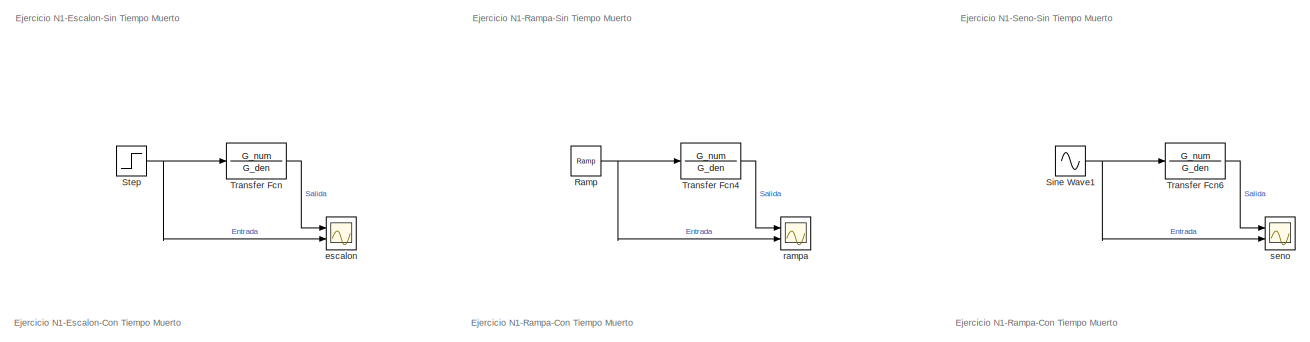
[diagram: root canvas - part 1/2, full width, top band]
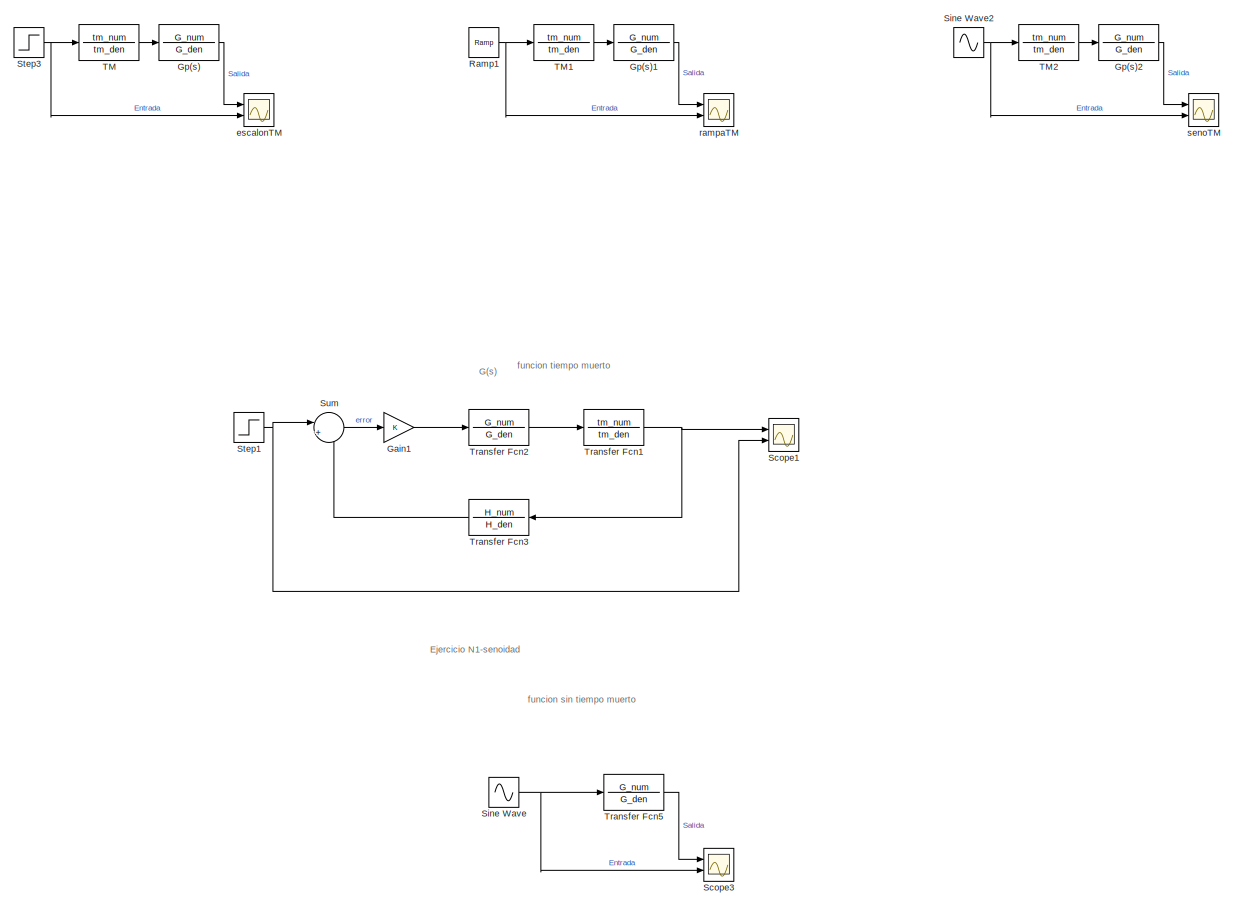
[diagram: root canvas - part 2/2, full width, middle band]
MODEL slx_352f4ea05010
KIND model
CONFIG AbsTol = auto
CONFIG EnableMultiTasking = off
CONFIG FixedStep = auto
CONFIG MaxStep = 1e-3
CONFIG MinStep = auto
CONFIG RelTol = 1e-3
CONFIG SampleTimeConstraint = Unconstrained
CONFIG SolverName = VariableStepAuto
CONFIG StartTime = 0.0
CONFIG StopTime = 100
BLOCK [Gain] Gain1
BLOCK [TransferFcn] Gp(s)
  Denominator = G_den
  Numerator = G_num
BLOCK [TransferFcn] Gp(s)1
  Denominator = G_den
  Numerator = G_num
BLOCK [TransferFcn] Gp(s)2
  Denominator = G_den
  Numerator = G_num
BLOCK [Reference] Ramp  REF=simulink/Sources/Ramp
  Ports = [0, 1]
  SourceBlock = simulink/Sources/Ramp
  SourceProductBaseCode = SL
  SourceType = Ramp
BLOCK [Reference] Ramp1  REF=simulink/Sources/Ramp
  Ports = [0, 1]
  SourceBlock = simulink/Sources/Ramp
  SourceProductBaseCode = SL
  SourceType = Ramp
BLOCK [Scope] Scope1
  Floating = off
  NumInputPorts = 2
  Ports = [2]
  ScopeSpecificationString = Simulink.scopes.TimeScopeBlockCfg('CurrentConfiguration', extmgr.ConfigurationSet(extmgr.Configuration('Core','General UI',true),extmgr.Configuration('Core','Source UI',true),extmgr.Configuration('Sources','WiredSimulink',true,'DataLoggingVariableName','ScopeData1'),extmgr.Configuration('Visuals','Time Domain',true,'SerializedDisplays',{struct('MinYLimReal','-18573.36873','MaxYLimReal','12384.8282...<+1410ch>
BLOCK [Scope] Scope3
  Floating = off
  NumInputPorts = 2
  Ports = [2]
  ScopeSpecificationString = Simulink.scopes.TimeScopeBlockCfg('CurrentConfiguration', extmgr.ConfigurationSet(extmgr.Configuration('Core','General UI',true),extmgr.Configuration('Core','Source UI',true),extmgr.Configuration('Sources','WiredSimulink',true,'DataLoggingVariableName','E1_Sen_stm','DataLogging',true,'DataLoggingSaveFormat','StructureWithTime'),extmgr.Configuration('Visuals','Time Domain',true,'SerializedDisplays'...<+1493ch>
BLOCK [Sin] Sine Wave
  Ports = [0, 1]
  SampleTime = 0
BLOCK [Sin] Sine Wave1
  Frequency = 0.1
  Ports = [0, 1]
  SampleTime = 0
BLOCK [Sin] Sine Wave2
  Frequency = 0.1
  Ports = [0, 1]
  SampleTime = 0
BLOCK [Step] Step
  SampleTime = 0
BLOCK [Step] Step1
  SampleTime = 0
BLOCK [Step] Step3
  SampleTime = 0
BLOCK [Sum] Sum
  Inputs = |+-
  Ports = [2, 1]
BLOCK [TransferFcn] TM
  Denominator = tm_den
  Numerator = tm_num
BLOCK [TransferFcn] TM1
  Denominator = tm_den
  Numerator = tm_num
BLOCK [TransferFcn] TM2
  Denominator = tm_den
  Numerator = tm_num
BLOCK [TransferFcn] Transfer Fcn
  Denominator = G_den
  Numerator = G_num
BLOCK [TransferFcn] Transfer Fcn1
  Denominator = tm_den
  Numerator = tm_num
BLOCK [TransferFcn] Transfer Fcn2
  Denominator = G_den
  Numerator = G_num
BLOCK [TransferFcn] Transfer Fcn3
  Denominator = H_den
  NameLocation = top
  Numerator = H_num
BLOCK [TransferFcn] Transfer Fcn4
  Denominator = G_den
  Numerator = G_num
BLOCK [TransferFcn] Transfer Fcn5
  Denominator = G_den
  Numerator = G_num
BLOCK [TransferFcn] Transfer Fcn6
  Denominator = G_den
  Numerator = G_num
BLOCK [Scope] escalon
  Floating = off
  NumInputPorts = 2
  Ports = [2]
  ScopeSpecificationString = Simulink.scopes.TimeScopeBlockCfg('CurrentConfiguration', extmgr.ConfigurationSet(extmgr.Configuration('Core','General UI',true),extmgr.Configuration('Core','Source UI',true),extmgr.Configuration('Sources','WiredSimulink',true,'DataLoggingVariableName','E1_Esca_stm','DataLogging',true,'DataLoggingSaveFormat','StructureWithTime'),extmgr.Configuration('Visuals','Time Domain',true,'SerializedDisplays...<+1518ch>
BLOCK [Scope] escalonTM
  Floating = off
  NumInputPorts = 2
  Ports = [2]
  ScopeSpecificationString = Simulink.scopes.TimeScopeBlockCfg('CurrentConfiguration', extmgr.ConfigurationSet(extmgr.Configuration('Core','General UI',true),extmgr.Configuration('Core','Source UI',true),extmgr.Configuration('Sources','WiredSimulink',true,'DataLoggingVariableName','ScopeData1'),extmgr.Configuration('Visuals','Time Domain',true,'SerializedDisplays',{struct('MinYLimReal','-23.10905','MaxYLimReal','207.01212','Y...<+1427ch>
BLOCK [Scope] rampa
  Floating = off
  NumInputPorts = 2
  Ports = [2]
  ScopeSpecificationString = Simulink.scopes.TimeScopeBlockCfg('CurrentConfiguration', extmgr.ConfigurationSet(extmgr.Configuration('Core','General UI',true),extmgr.Configuration('Core','Source UI',true),extmgr.Configuration('Sources','WiredSimulink',true,'DataLoggingVariableName','E1_Esca_stm1','DataLogging',true,'DataLoggingSaveFormat','StructureWithTime'),extmgr.Configuration('Visuals','Time Domain',true,'SerializedDisplay...<+1497ch>
BLOCK [Scope] rampaTM
  Floating = off
  NumInputPorts = 2
  Ports = [2]
  ScopeSpecificationString = Simulink.scopes.TimeScopeBlockCfg('CurrentConfiguration', extmgr.ConfigurationSet(extmgr.Configuration('Core','General UI',true),extmgr.Configuration('Core','Source UI',true),extmgr.Configuration('Sources','WiredSimulink',true,'DataLoggingVariableName','E1_Esca_stm2','DataLogging',true,'DataLoggingSaveFormat','StructureWithTime'),extmgr.Configuration('Visuals','Time Domain',true,'SerializedDisplay...<+1517ch>
BLOCK [Scope] seno
  Floating = off
  NumInputPorts = 2
  Ports = [2]
  ScopeSpecificationString = Simulink.scopes.TimeScopeBlockCfg('CurrentConfiguration', extmgr.ConfigurationSet(extmgr.Configuration('Core','General UI',true),extmgr.Configuration('Core','Source UI',true),extmgr.Configuration('Sources','WiredSimulink',true,'DataLoggingVariableName','E1_Esca_stm3','DataLogging',true,'DataLoggingSaveFormat','StructureWithTime'),extmgr.Configuration('Visuals','Time Domain',true,'SerializedDisplay...<+1525ch>
BLOCK [Scope] senoTM
  Floating = off
  NumInputPorts = 2
  Ports = [2]
  ScopeSpecificationString = Simulink.scopes.TimeScopeBlockCfg('CurrentConfiguration', extmgr.ConfigurationSet(extmgr.Configuration('Core','General UI',true),extmgr.Configuration('Core','Source UI',true),extmgr.Configuration('Sources','WiredSimulink',true,'DataLoggingVariableName','E1_Esca_stm4','DataLogging',true,'DataLoggingSaveFormat','StructureWithTime'),extmgr.Configuration('Visuals','Time Domain',true,'SerializedDisplay...<+1499ch>
ANNOTATION (root): Ejercicio N1-Escalon-Con Tiempo Muerto
ANNOTATION (root): Ejercicio N1-Escalon-Sin Tiempo Muerto
ANNOTATION (root): Ejercicio N1-Rampa-Con Tiempo Muerto
ANNOTATION (root): Ejercicio N1-Rampa-Sin Tiempo Muerto
ANNOTATION (root): Ejercicio N1-Seno-Sin Tiempo Muerto
ANNOTATION (root): Ejercicio N1-senoidad
ANNOTATION (root): G(s)
ANNOTATION (root): funcion sin tiempo muerto
ANNOTATION (root): funcion tiempo muerto
LINE Gain1:1 -> Transfer Fcn2:1
LINE Gp(s)1:1 -> rampaTM:1
LINE Gp(s)2:1 -> senoTM:1
LINE Gp(s):1 -> escalonTM:1
NET Ramp1:1 -> TM1:1, rampaTM:2
NET Ramp:1 -> Transfer Fcn4:1, rampa:2
NET Sine Wave1:1 -> Transfer Fcn6:1, seno:2
NET Sine Wave2:1 -> TM2:1, senoTM:2
NET Sine Wave:1 -> Scope3:2, Transfer Fcn5:1
NET Step1:1 -> Scope1:2, Sum:1
NET Step3:1 -> TM:1, escalonTM:2
NET Step:1 -> Transfer Fcn:1, escalon:2
LINE Sum:1 -> Gain1:1
LINE TM1:1 -> Gp(s)1:1
LINE TM2:1 -> Gp(s)2:1
LINE TM:1 -> Gp(s):1
NET Transfer Fcn1:1 -> Scope1:1, Transfer Fcn3:1
LINE Transfer Fcn2:1 -> Transfer Fcn1:1
LINE Transfer Fcn3:1 -> Sum:2
LINE Transfer Fcn4:1 -> rampa:1
LINE Transfer Fcn5:1 -> Scope3:1
LINE Transfer Fcn6:1 -> seno:1
LINE Transfer Fcn:1 -> escalon:1
note: NET lines group one-source signal fan-out (src -> all destinations, sorted); 1:1 wires keep LINE
